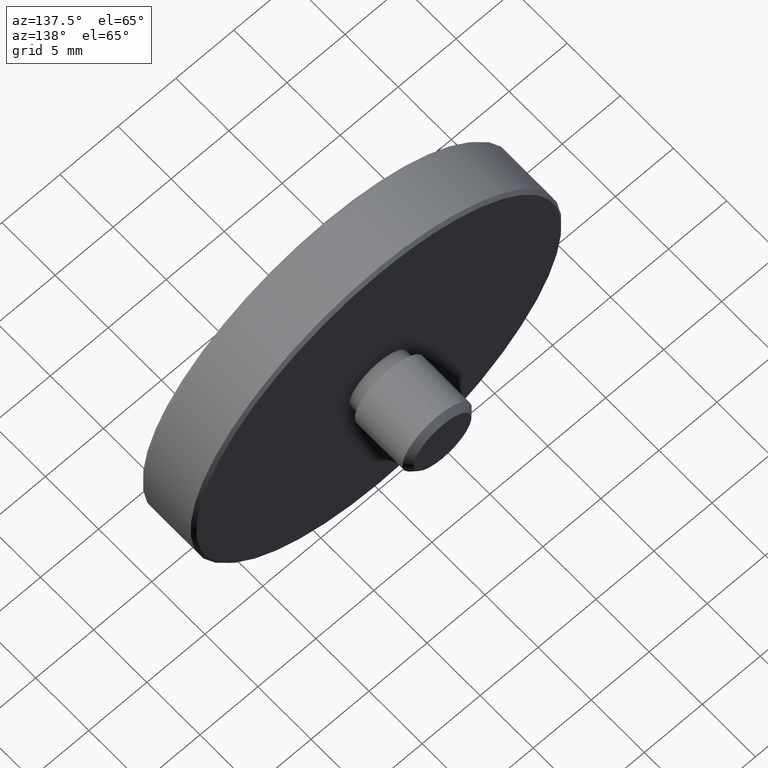
[diagram: clean part render]
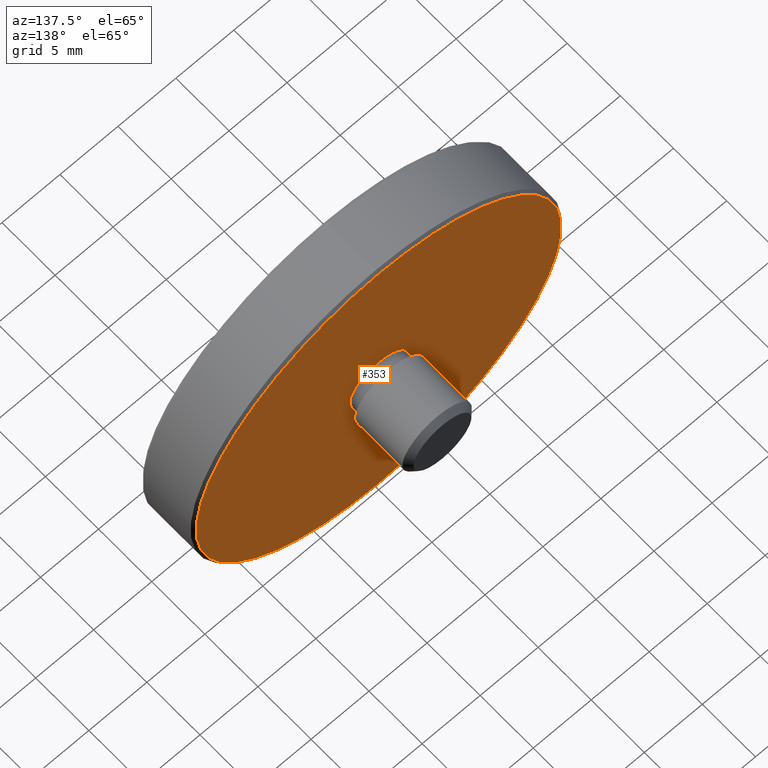
[diagram: same view with one face highlighted and labeled with its STEP entity id]
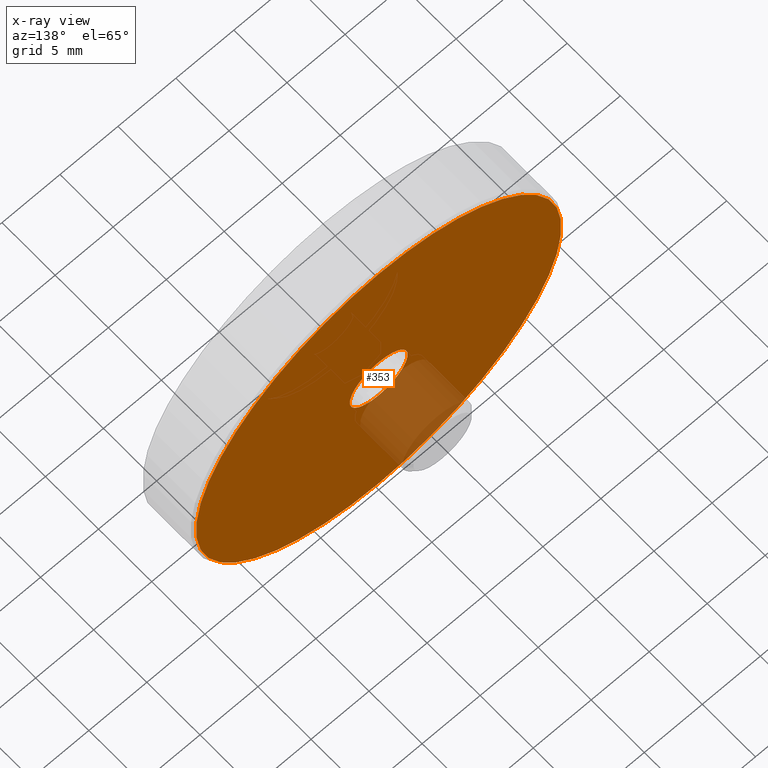
[diagram: x-ray of the same camera — body ghosted, the highlighted face saturated]
A machine part, auxiliary view. The second image highlights one B-rep face of the part: STEP entity #353.
The next image is the same camera in x-ray: the body ghosted, the highlighted face saturated — about 10% of this face is hidden behind the body in this view.
In plain terms, the highlighted planar face has unit normal (0, 1, 0).
Its self-contained STEP definition (entity closure, byte-faithful):
#8 = CARTESIAN_POINT ( 'NONE',  ( 0.000000000000000000, 5.000000000000000000, 0.000000000000000000 ) ) ;
#14 = ORIENTED_EDGE ( 'NONE', *, *, #677, .T. ) ;
#41 = AXIS2_PLACEMENT_3D ( 'NONE', #801, #290, #217 ) ;
#66 = AXIS2_PLACEMENT_3D ( 'NONE', #484, #750, #157 ) ;
#102 = ORIENTED_EDGE ( 'NONE', *, *, #190, .F. ) ;
#128 = AXIS2_PLACEMENT_3D ( 'NONE', #275, #264, #198 ) ;
#157 = DIRECTION ( 'NONE',  ( 0.000000000000000000, -0.000000000000000000, 1.000000000000000000 ) ) ;
#178 = CARTESIAN_POINT ( 'NONE',  ( 0.000000000000000000, 5.000000000000000000, -15.74999999999999289 ) ) ;
#190 = EDGE_CURVE ( 'NONE', #315, #626, #339, .T. ) ;
#192 = AXIS2_PLACEMENT_3D ( 'NONE', #779, #843, #504 ) ;
#195 = CIRCLE ( 'NONE', #128, 2.500000000000000444 ) ;
#198 = DIRECTION ( 'NONE',  ( 0.000000000000000000, 0.000000000000000000, 1.000000000000000000 ) ) ;
#217 = DIRECTION ( 'NONE',  ( 0.000000000000000000, 0.000000000000000000, 1.000000000000000000 ) ) ;
#219 = FACE_BOUND ( 'NONE', #752, .T. ) ;
#232 = VERTEX_POINT ( 'NONE', #178 ) ;
#233 = CIRCLE ( 'NONE', #41, 15.74999999999999289 ) ;
#252 = ORIENTED_EDGE ( 'NONE', *, *, #394, .F. ) ;
#264 = DIRECTION ( 'NONE',  ( 0.000000000000000000, 1.000000000000000000, 0.000000000000000000 ) ) ;
#268 = CARTESIAN_POINT ( 'NONE',  ( 1.944126793646422844E-15, 5.000000000000000000, 15.74999999999999289 ) ) ;
#275 = CARTESIAN_POINT ( 'NONE',  ( 0.000000000000000000, 5.000000000000000000, 0.000000000000000000 ) ) ;
#290 = DIRECTION ( 'NONE',  ( 0.000000000000000000, 1.000000000000000000, 0.000000000000000000 ) ) ;
#291 = PLANE ( 'NONE',  #66 ) ;
#315 = VERTEX_POINT ( 'NONE', #612 ) ;
#339 = CIRCLE ( 'NONE', #192, 2.500000000000000444 ) ;
#353 = ADVANCED_FACE ( 'NONE', ( #816, #219 ), #291, .T. ) ;
#385 = VERTEX_POINT ( 'NONE', #268 ) ;
#390 = DIRECTION ( 'NONE',  ( 0.000000000000000000, 0.000000000000000000, 1.000000000000000000 ) ) ;
#394 = EDGE_CURVE ( 'NONE', #626, #315, #195, .T. ) ;
#460 = EDGE_CURVE ( 'NONE', #385, #232, #461, .T. ) ;
#461 = CIRCLE ( 'NONE', #577, 15.74999999999999289 ) ;
#484 = CARTESIAN_POINT ( 'NONE',  ( 0.000000000000000000, 5.000000000000000000, 0.000000000000000000 ) ) ;
#504 = DIRECTION ( 'NONE',  ( 0.000000000000000000, 0.000000000000000000, 1.000000000000000000 ) ) ;
#507 = ORIENTED_EDGE ( 'NONE', *, *, #460, .T. ) ;
#511 = EDGE_LOOP ( 'NONE', ( #14, #507 ) ) ;
#577 = AXIS2_PLACEMENT_3D ( 'NONE', #8, #597, #390 ) ;
#597 = DIRECTION ( 'NONE',  ( 0.000000000000000000, 1.000000000000000000, 0.000000000000000000 ) ) ;
#612 = CARTESIAN_POINT ( 'NONE',  ( 0.000000000000000000, 5.000000000000000000, -2.500000000000000444 ) ) ;
#626 = VERTEX_POINT ( 'NONE', #748 ) ;
#677 = EDGE_CURVE ( 'NONE', #232, #385, #233, .T. ) ;
#748 = CARTESIAN_POINT ( 'NONE',  ( 3.061616997868383634E-16, 5.000000000000000000, 2.500000000000000444 ) ) ;
#750 = DIRECTION ( 'NONE',  ( 0.000000000000000000, 1.000000000000000000, 0.000000000000000000 ) ) ;
#752 = EDGE_LOOP ( 'NONE', ( #102, #252 ) ) ;
#779 = CARTESIAN_POINT ( 'NONE',  ( 0.000000000000000000, 5.000000000000000000, 0.000000000000000000 ) ) ;
#801 = CARTESIAN_POINT ( 'NONE',  ( 0.000000000000000000, 5.000000000000000000, 0.000000000000000000 ) ) ;
#816 = FACE_OUTER_BOUND ( 'NONE', #511, .T. ) ;
#843 = DIRECTION ( 'NONE',  ( 0.000000000000000000, 1.000000000000000000, 0.000000000000000000 ) ) ;